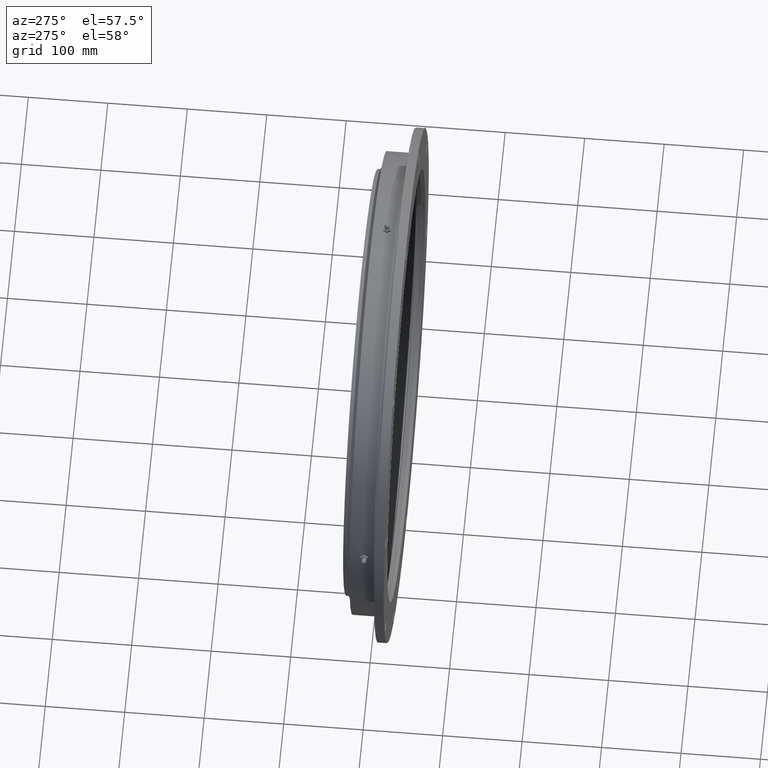
[diagram: clean part render]
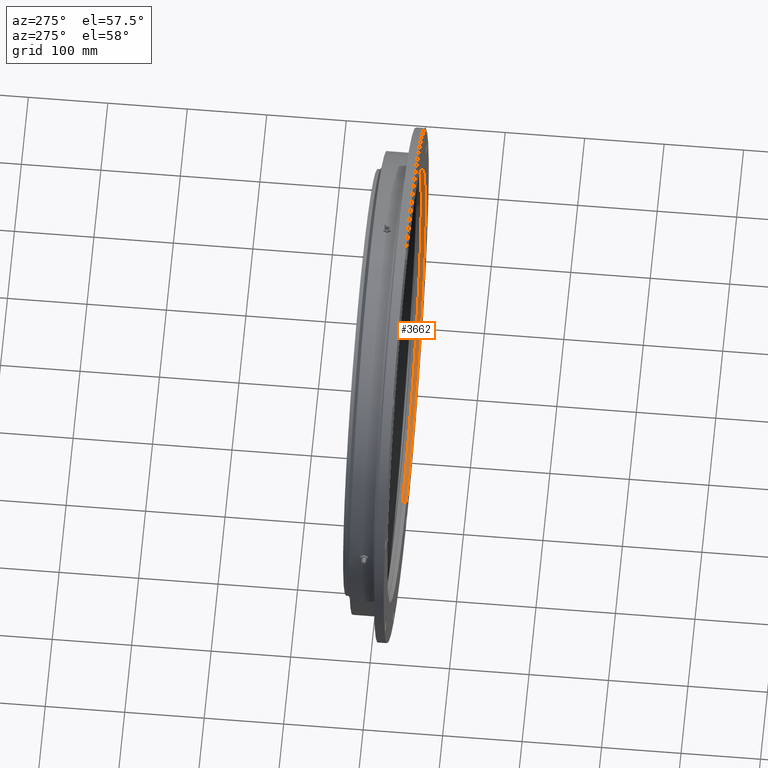
[diagram: same view with one face highlighted and labeled with its STEP entity id]
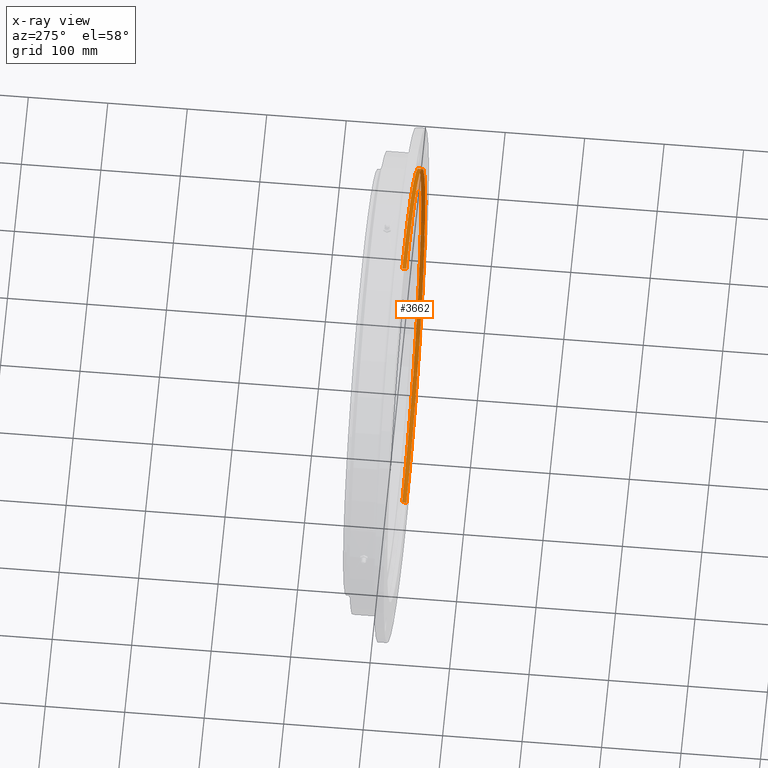
[diagram: x-ray of the same camera — body ghosted, the highlighted face saturated]
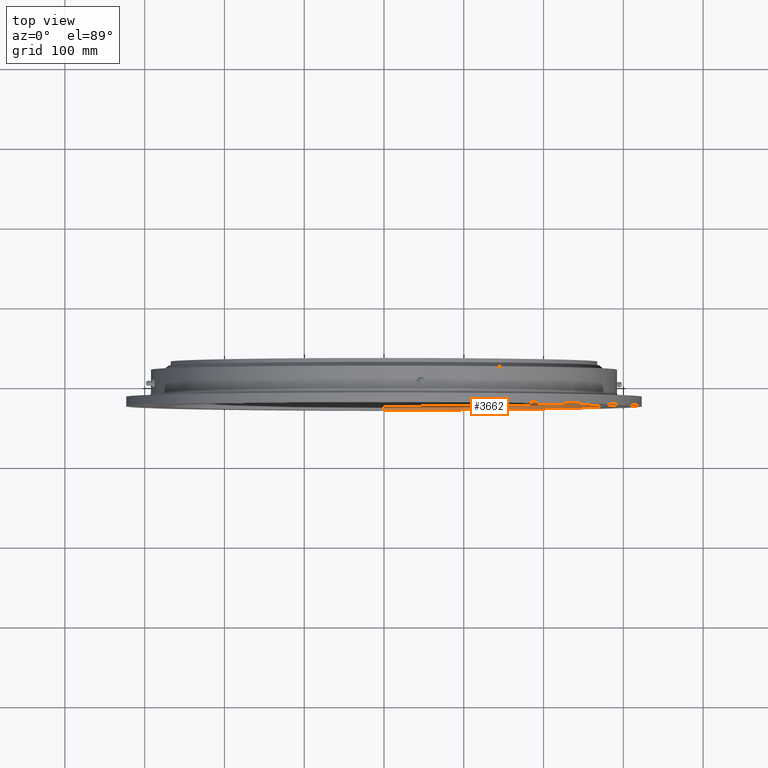
[diagram: same view with one face highlighted and labeled with its STEP entity id]
A machine part, auxiliary view. The second image highlights one B-rep face of the part: STEP entity #3662.
The next image is the same camera in x-ray: the body ghosted, the highlighted face saturated — about 0% of this face is hidden behind the body in this view.
A second angle (top view) of the same face is appended — the face is thin or edge-on in the first view.
In plain terms, the highlighted cylindrical surface (partial cylindrical patch) has radius 272.75 mm, axis along (-0, 1, -0).
Its self-contained STEP definition (entity closure, byte-faithful):
#423 = LINE ( 'NONE', #1571, #3780 ) ;
#487 = CYLINDRICAL_SURFACE ( 'NONE', #5391, 272.7499999999999400 ) ;
#618 = FACE_OUTER_BOUND ( 'NONE', #9379, .T. ) ;
#693 = VERTEX_POINT ( 'NONE', #6746 ) ;
#1069 = CARTESIAN_POINT ( 'NONE',  ( 0.0000000000000000000, -28.00000000000002500, 272.7500000000000000 ) ) ;
#1110 = DIRECTION ( 'NONE',  ( -0.0000000000000000000, 1.000000000000000000, -0.0000000000000000000 ) ) ;
#1263 = ORIENTED_EDGE ( 'NONE', *, *, #8213, .T. ) ;
#1463 = VERTEX_POINT ( 'NONE', #4326 ) ;
#1571 = CARTESIAN_POINT ( 'NONE',  ( 0.0000000000000000000, 22.16364734299516900, 272.7499999999999400 ) ) ;
#1873 = DIRECTION ( 'NONE',  ( 0.0000000000000000000, 0.0000000000000000000, 1.000000000000000000 ) ) ;
#1924 = DIRECTION ( 'NONE',  ( 0.0000000000000000000, 0.0000000000000000000, 1.000000000000000000 ) ) ;
#2138 = CARTESIAN_POINT ( 'NONE',  ( 3.340224144674405000E-014, 22.16364734299516900, -272.7499999999999400 ) ) ;
#3662 = ADVANCED_FACE ( 'NONE', ( #618 ), #487, .F. ) ;
#3746 = EDGE_CURVE ( 'NONE', #9030, #1463, #9568, .T. ) ;
#3780 = VECTOR ( 'NONE', #6102, 1000.000000000000000 ) ;
#3868 = ORIENTED_EDGE ( 'NONE', *, *, #5724, .F. ) ;
#3871 = VERTEX_POINT ( 'NONE', #8210 ) ;
#4326 = CARTESIAN_POINT ( 'NONE',  ( 3.340224144674405600E-014, -28.00000000000002500, -272.7500000000000000 ) ) ;
#4583 = ORIENTED_EDGE ( 'NONE', *, *, #8297, .T. ) ;
#4661 = DIRECTION ( 'NONE',  ( 0.0000000000000000000, 0.0000000000000000000, 1.000000000000000000 ) ) ;
#4947 = ORIENTED_EDGE ( 'NONE', *, *, #3746, .F. ) ;
#5391 = AXIS2_PLACEMENT_3D ( 'NONE', #7897, #6185, #1924 ) ;
#5474 = DIRECTION ( 'NONE',  ( -0.0000000000000000000, 1.000000000000000000, -0.0000000000000000000 ) ) ;
#5665 = CARTESIAN_POINT ( 'NONE',  ( 0.0000000000000000000, -23.05000000000001500, 0.0000000000000000000 ) ) ;
#5724 = EDGE_CURVE ( 'NONE', #1463, #693, #5995, .T. ) ;
#5995 = LINE ( 'NONE', #2138, #9763 ) ;
#6102 = DIRECTION ( 'NONE',  ( -0.0000000000000000000, 1.000000000000000000, -0.0000000000000000000 ) ) ;
#6178 = CARTESIAN_POINT ( 'NONE',  ( 0.0000000000000000000, -28.00000000000002500, 0.0000000000000000000 ) ) ;
#6185 = DIRECTION ( 'NONE',  ( -0.0000000000000000000, 1.000000000000000000, -0.0000000000000000000 ) ) ;
#6607 = AXIS2_PLACEMENT_3D ( 'NONE', #5665, #1110, #1873 ) ;
#6746 = CARTESIAN_POINT ( 'NONE',  ( 3.340224144674405600E-014, -23.05000000000001500, -272.7500000000000000 ) ) ;
#7313 = CIRCLE ( 'NONE', #6607, 272.7500000000000000 ) ;
#7406 = AXIS2_PLACEMENT_3D ( 'NONE', #6178, #5474, #4661 ) ;
#7421 = DIRECTION ( 'NONE',  ( -0.0000000000000000000, 1.000000000000000000, -0.0000000000000000000 ) ) ;
#7897 = CARTESIAN_POINT ( 'NONE',  ( 0.0000000000000000000, 22.16364734299516900, 0.0000000000000000000 ) ) ;
#8210 = CARTESIAN_POINT ( 'NONE',  ( 0.0000000000000000000, -23.05000000000001500, 272.7500000000000000 ) ) ;
#8213 = EDGE_CURVE ( 'NONE', #9030, #3871, #423, .T. ) ;
#8297 = EDGE_CURVE ( 'NONE', #3871, #693, #7313, .T. ) ;
#9030 = VERTEX_POINT ( 'NONE', #1069 ) ;
#9379 = EDGE_LOOP ( 'NONE', ( #3868, #4947, #1263, #4583 ) ) ;
#9568 = CIRCLE ( 'NONE', #7406, 272.7500000000000000 ) ;
#9763 = VECTOR ( 'NONE', #7421, 1000.000000000000000 ) ;